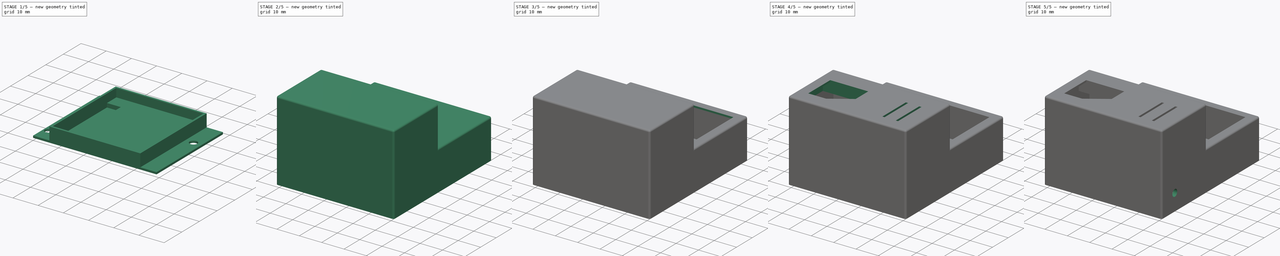
[diagram: build sequence overview — one tinted view per stage of 5, left to right]
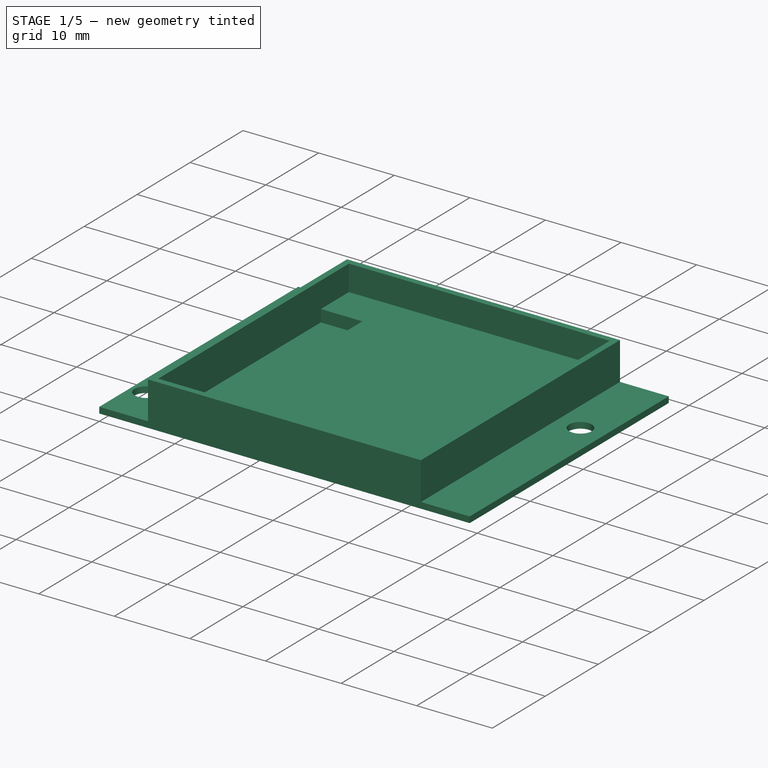
[diagram: stage 1 of 5 — iso view after this stage's code; geometry added in this stage tinted green]
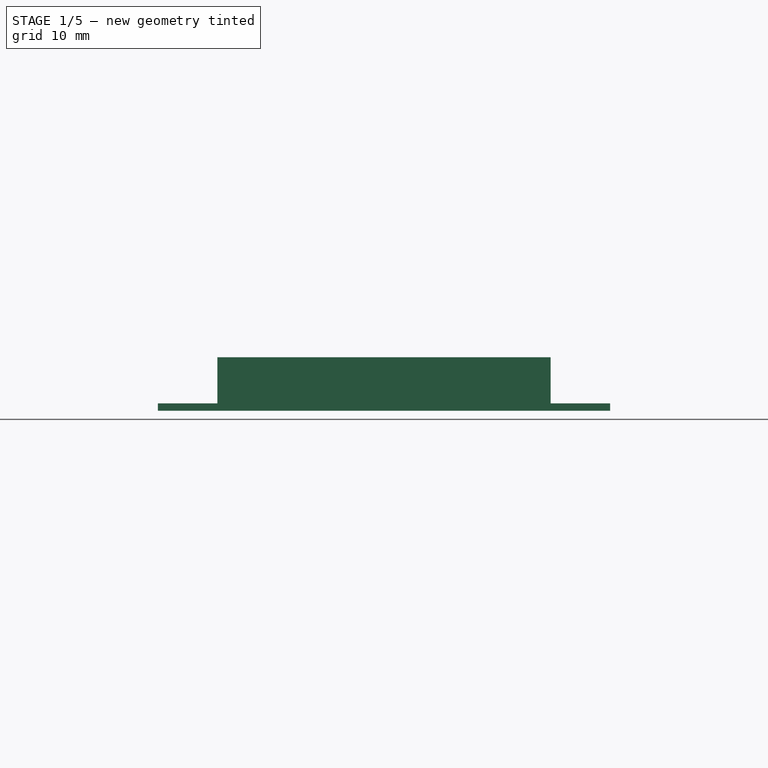
[diagram: stage 1 of 5 — front view after this stage's code; geometry added in this stage tinted green]
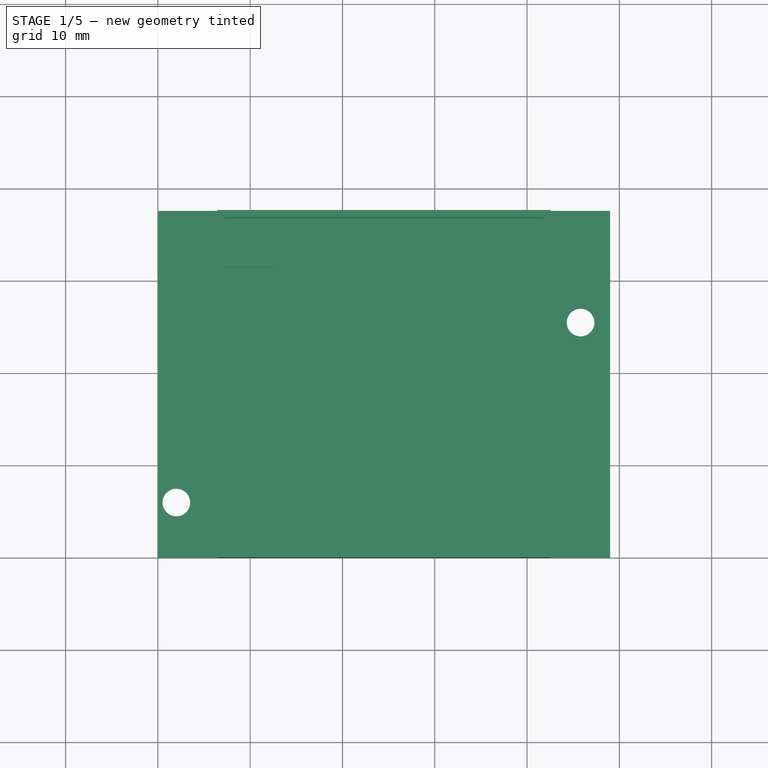
[diagram: stage 1 of 5 — top view after this stage's code; geometry added in this stage tinted green]
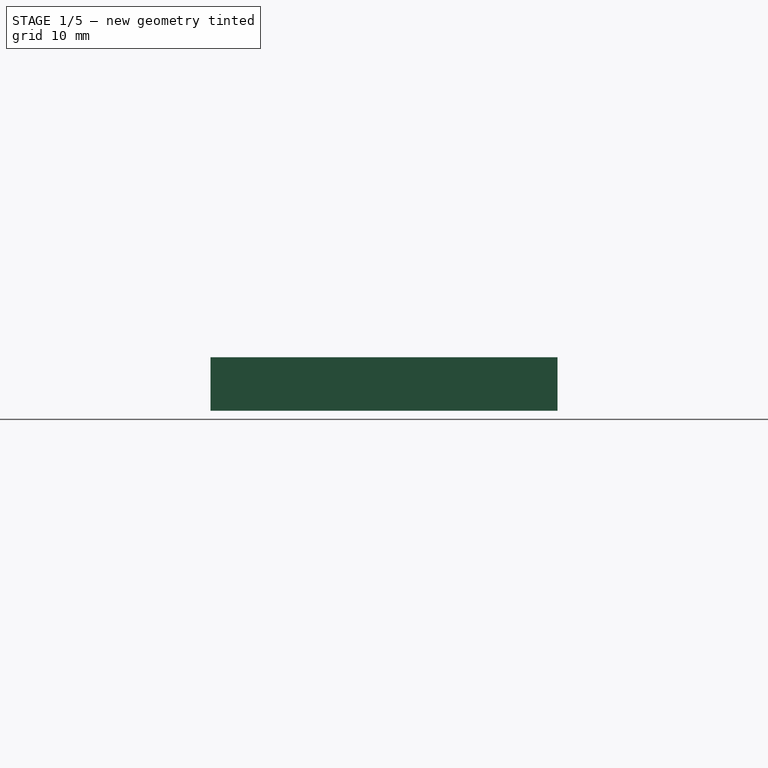
[diagram: stage 1 of 5 — right view after this stage's code; geometry added in this stage tinted green]
FCSTD DOCUMENT  (FreeCAD 0.19R24276 (Git))
Label: espair_case
License: All rights reserved
LicenseURL: http://en.wikipedia.org/wiki/All_rights_reserved
objects: Sketcher::SketchObject×24, PartDesign::Pocket×15, PartDesign::Pad×9, PartDesign::Fillet×3, PartDesign::Body×2, PartDesign::Thickness×1, PartDesign::LinearPattern×1
note: 83 computed .brp shape members not serialized (recipe doc carries the construction recipe); baked Part::Feature solids carry a one-line shape summary decoded from their .brp

FEATURE [PartDesign::Body] Body
  Group = -> [Sketch,Pad,Sketch001,Pocket,Thickness,Sketch002,Pocket001,Sketch003,Pocket002,Sketch004,Pocket003,Sketch005,Pocket004,Sketch006,Pad001,Sketch007,Pocket005,Sketch008,Pocket006,Sketch010,Pocket007,LinearPattern,Fillet,Sketch011,Pad002,Sketch012,Pad003,Sketch013,Pad004,Sketch014,Pad005,Sketch016,Pad006,Sketch015,Pocket008,Fillet001]
  Origin = -> Origin
  Tip = -> Fillet001
FEATURE [Sketcher::SketchObject] Sketch017
  FullyConstrained = true
  MapMode = 5
  Support = -> [XY_Plane001]
  sketch-geometry (4):
    g0: LineSegment StartX=0 StartY=0 StartZ=0 EndX=49 EndY=0 EndZ=0
    g1: LineSegment StartX=49 StartY=0 StartZ=0 EndX=49 EndY=37.6 EndZ=0
    g2: LineSegment StartX=49 StartY=37.6 StartZ=0 EndX=0 EndY=37.6 EndZ=0
    g3: LineSegment StartX=0 StartY=37.6 StartZ=0 EndX=0 EndY=0 EndZ=0
  constraints (11):
    c: Coincident(g0,g1)
    c: Coincident(g1,g2)
    c: Coincident(g2,g3)
    c: Coincident(g3,g0)
    c: Horizontal(g0)
    c: Horizontal(g2)
    c: Vertical(g1)
    c: Vertical(g3)
    c: Coincident(g0,g-1)
    c: DistanceX(g0,g0) = 49
    c: DistanceY(g1,g1) = 37.6
FEATURE [PartDesign::Pad] Pad007
  Direction = (1,1,1)
  Length = 0.8
  Length2 = 100
  Profile = -> Sketch017
  Type = 0
FEATURE [Sketcher::SketchObject] Sketch018
  FullyConstrained = true
  MapMode = 5
  Placement = pos=(0,0,0.8) rot=(0,0,1;0rad)
  Support = -> [Pad007]
  sketch-geometry (1):
    g0: Circle CenterX=2 CenterY=6 CenterZ=0 NormalX=0 NormalY=0 NormalZ=1 AngleXU=0 Radius=1.5
  constraints (3):
    c: DistanceX(g-1,g0) = 2
    c: Radius(g0) = 1.5
    c: DistanceY(g-1,g0) = 6
FEATURE [PartDesign::Pocket] Pocket009
  BaseFeature = -> Pad007
  Length = 5
  Length2 = 100
  Profile = -> Sketch018
  Type = 2
FEATURE [Sketcher::SketchObject] Sketch020
  ExternalGeometry = -> [Pocket009]
  FullyConstrained = true
  MapMode = 5
  Placement = pos=(0,0,0.8) rot=(0,0,1;0rad)
  Support = -> [Pocket009]
  sketch-geometry (1):
    g0: Circle CenterX=45.8 CenterY=25.5 CenterZ=0 NormalX=0 NormalY=0 NormalZ=1 AngleXU=0 Radius=1.5
  constraints (3):
    c: Radius(g0) = 1.5
    c: Distance(g0,g-3) = 3.2
    c: DistanceY(g-4,g0) = 19.5
FEATURE [PartDesign::Pocket] Pocket010
  BaseFeature = -> Pocket009
  Length = 5
  Length2 = 100
  Profile = -> Sketch020
  Type = 2
FEATURE [Sketcher::SketchObject] Sketch021
  ExternalGeometry = -> [Pocket010]
  FullyConstrained = true
  MapMode = 5
  Placement = pos=(0,0,0.8) rot=(0,0,1;0rad)
  Support = -> [Pocket010]
  sketch-geometry (6):
    g0: LineSegment StartX=6.45 StartY=37.6 StartZ=0 EndX=42.55 EndY=37.6 EndZ=0
    g1: LineSegment StartX=42.55 StartY=37.6 StartZ=0 EndX=42.55 EndY=0 EndZ=0
    g2: LineSegment StartX=42.55 StartY=0 StartZ=0 EndX=6.45 EndY=0 EndZ=0
    g3: LineSegment StartX=6.45 StartY=0 StartZ=0 EndX=6.45 EndY=37.6 EndZ=0
    g4: LineSegment StartX=42.55 StartY=37.6 StartZ=0 EndX=49 EndY=37.6 EndZ=0
    g5: LineSegment StartX=6.45 StartY=37.6 StartZ=0 EndX=0 EndY=37.6 EndZ=0
  constraints (16):
    c: Coincident(g0,g1)
    c: Coincident(g1,g2)
    c: Coincident(g2,g3)
    c: Coincident(g3,g0)
    c: Horizontal(g0)
    c: Horizontal(g2)
    c: Vertical(g1)
    c: Vertical(g3)
    c: PointOnObject(g0,g-3)
    c: PointOnObject(g1,g-1)
    c: DistanceX(g2,g2) = 36.1
    c: Coincident(g4,g0)
    c: Coincident(g4,g-3)
    c: Coincident(g5,g0)
    c: Coincident(g5,g-3)
    c: Equal(g5,g4)
FEATURE [PartDesign::Pad] Pad008
  BaseFeature = -> Pocket010
  Direction = (1,1,1)
  Length = 5
  Length2 = 100
  Profile = -> Sketch021
  Type = 0
FEATURE [Sketcher::SketchObject] Sketch022
  ExternalGeometry = -> [Pad008]
  FullyConstrained = true
  MapMode = 5
  Placement = pos=(0,0,5.8) rot=(0,0,1;0rad)
  Support = -> [Pad008]
  sketch-geometry (4):
    g0: LineSegment StartX=7.25 StartY=36.8 StartZ=0 EndX=41.75 EndY=36.8 EndZ=0
    g1: LineSegment StartX=41.75 StartY=36.8 StartZ=0 EndX=41.75 EndY=0.8 EndZ=0
    g2: LineSegment StartX=41.75 StartY=0.8 StartZ=0 EndX=7.25 EndY=0.8 EndZ=0
    g3: LineSegment StartX=7.25 StartY=0.8 StartZ=0 EndX=7.25 EndY=36.8 EndZ=0
  constraints (12):
    c: Coincident(g0,g1)
    c: Coincident(g1,g2)
    c: Coincident(g2,g3)
    c: Coincident(g3,g0)
    c: Horizontal(g0)
    c: Horizontal(g2)
    c: Vertical(g1)
    c: Vertical(g3)
    c: Distance(g0,g-3) = 0.8
    c: Distance(g0,g-4) = 0.8
    c: DistanceY(g-1,g1) = 0.8
    c: Distance(g-3,g3) = 0.8
FEATURE [PartDesign::Pocket] Pocket011
  BaseFeature = -> Pad008
  Length = 3.4
  Length2 = 100
  Profile = -> Sketch022
  Type = 0
FEATURE [Sketcher::SketchObject] Sketch023
  ExternalGeometry = -> [Pocket011]
  FullyConstrained = true
  MapMode = 5
  Placement = pos=(0,0,2.4) rot=(0,0,1;0rad)
  Support = -> [Pocket011]
  sketch-geometry (4):
    g0: LineSegment StartX=7.25 StartY=31.5 StartZ=0 EndX=12.75 EndY=31.5 EndZ=0
    g1: LineSegment StartX=12.75 StartY=31.5 StartZ=0 EndX=12.75 EndY=6.1 EndZ=0
    g2: LineSegment StartX=12.75 StartY=6.1 StartZ=0 EndX=7.25 EndY=6.1 EndZ=0
    g3: LineSegment StartX=7.25 StartY=6.1 StartZ=0 EndX=7.25 EndY=31.5 EndZ=0
  constraints (12):
    c: Coincident(g0,g1)
    c: Coincident(g1,g2)
    c: Coincident(g2,g3)
    c: Coincident(g3,g0)
    c: Horizontal(g0)
    c: Horizontal(g2)
    c: Vertical(g1)
    c: Vertical(g3)
    c: DistanceX(g2,g2) = 5.5
    c: PointOnObject(g0,g-3)
    c: Distance(g-3,g0) = 5.3
    c: Distance(g-3,g2) = 5.3
FEATURE [PartDesign::Pocket] Pocket012
  BaseFeature = -> Pocket011
  Length = 1.6
  Length2 = 100
  Profile = -> Sketch023
  Type = 0
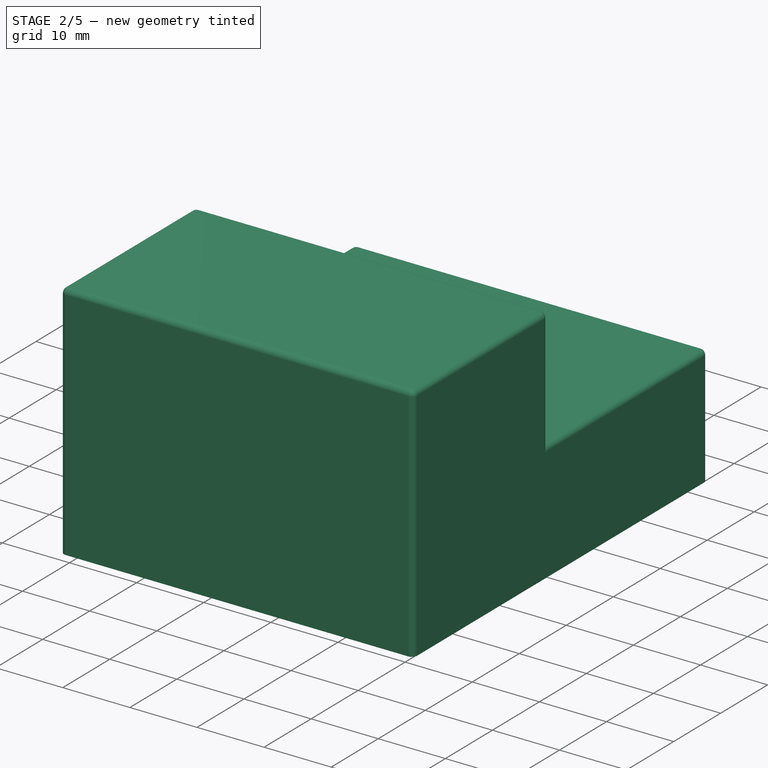
[diagram: stage 2 of 5 — iso view after this stage's code; geometry added in this stage tinted green]
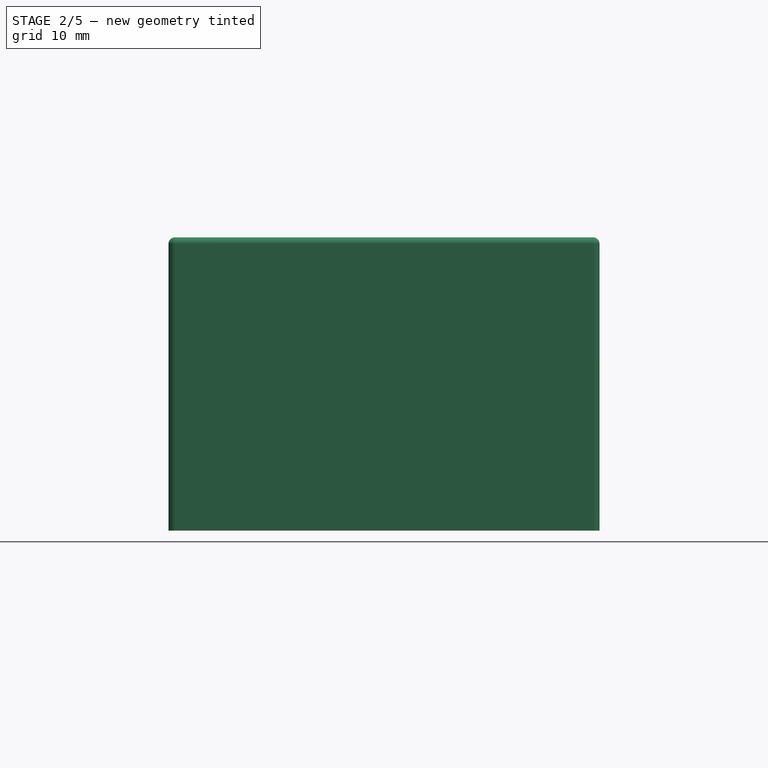
[diagram: stage 2 of 5 — front view after this stage's code; geometry added in this stage tinted green]
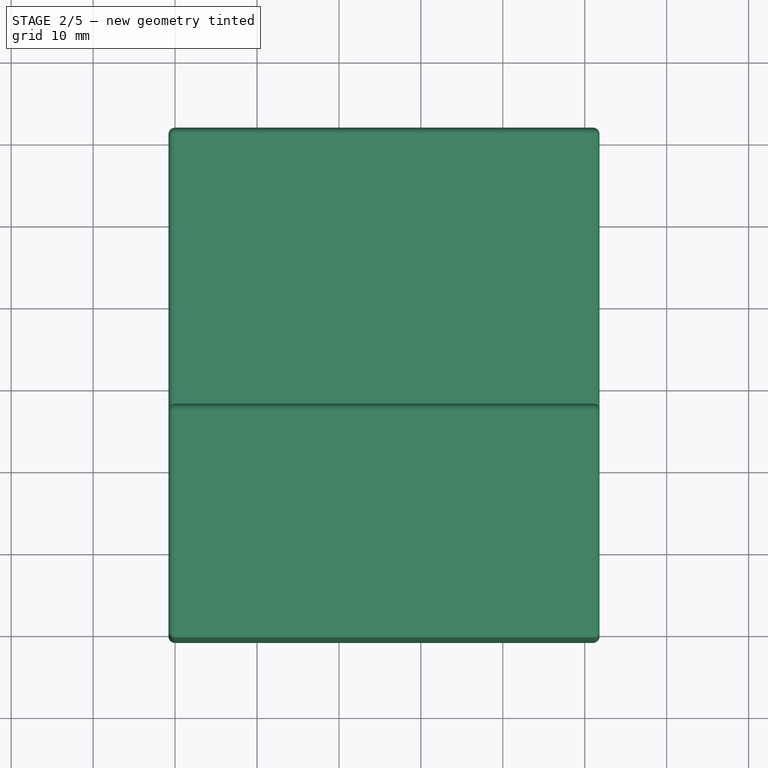
[diagram: stage 2 of 5 — top view after this stage's code; geometry added in this stage tinted green]
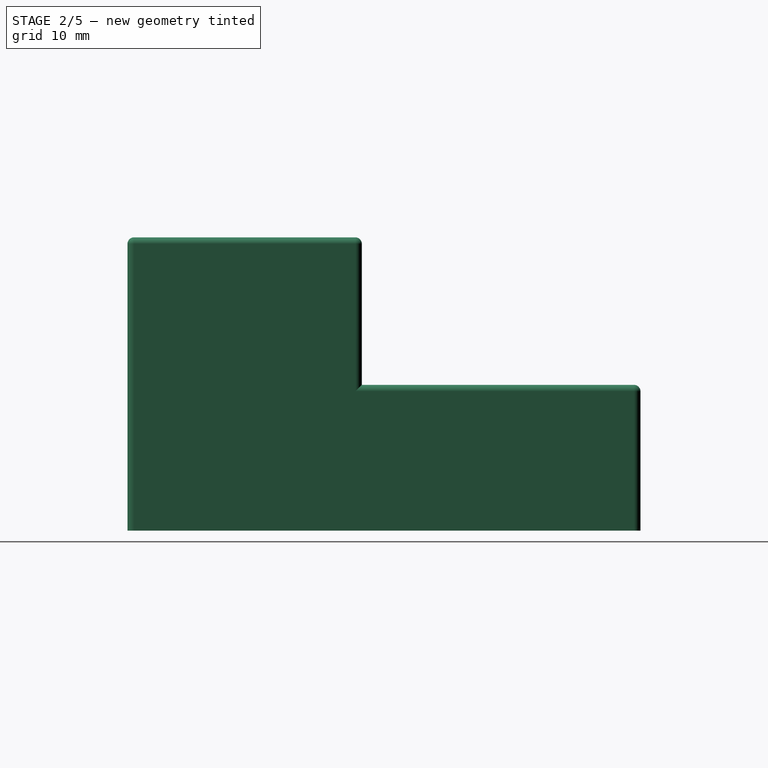
[diagram: stage 2 of 5 — right view after this stage's code; geometry added in this stage tinted green]
FEATURE [Sketcher::SketchObject] Sketch
  FullyConstrained = true
  MapMode = 5
  Support = -> [XY_Plane]
  sketch-geometry (4):
    g0: LineSegment StartX=0 StartY=0 StartZ=0 EndX=51 EndY=0 EndZ=0
    g1: LineSegment StartX=51 StartY=0 StartZ=0 EndX=51 EndY=61 EndZ=0
    g2: LineSegment StartX=51 StartY=61 StartZ=0 EndX=0 EndY=61 EndZ=0
    g3: LineSegment StartX=0 StartY=61 StartZ=0 EndX=0 EndY=0 EndZ=0
  constraints (11):
    c: Coincident(g0,g1)
    c: Coincident(g1,g2)
    c: Coincident(g2,g3)
    c: Coincident(g3,g0)
    c: Horizontal(g0)
    c: Horizontal(g2)
    c: Vertical(g1)
    c: Vertical(g3)
    c: Coincident(g0,g-1)
    c: DistanceX(g2,g2) = 51
    c: DistanceY(g3,g3) = 61
FEATURE [PartDesign::Pad] Pad
  Direction = (1,1,1)
  Length = 35
  Length2 = 100
  Profile = -> Sketch
  Type = 0
FEATURE [Sketcher::SketchObject] Sketch001
  ExternalGeometry = -> [Pad]
  FullyConstrained = true
  MapMode = 5
  Placement = pos=(0,0,35) rot=(0,0,1;0rad)
  Support = -> [Pad]
  sketch-geometry (4):
    g0: LineSegment StartX=51 StartY=61 StartZ=0 EndX=0 EndY=61 EndZ=0
    g1: LineSegment StartX=0 StartY=61 StartZ=0 EndX=0 EndY=27 EndZ=0
    g2: LineSegment StartX=0 StartY=27 StartZ=0 EndX=51 EndY=27 EndZ=0
    g3: LineSegment StartX=51 StartY=27 StartZ=0 EndX=51 EndY=61 EndZ=0
  constraints (11):
    c: Coincident(g0,g1)
    c: Coincident(g1,g2)
    c: Coincident(g2,g3)
    c: Coincident(g3,g0)
    c: Horizontal(g0)
    c: Horizontal(g2)
    c: Vertical(g1)
    c: Vertical(g3)
    c: Coincident(g0,g-3)
    c: PointOnObject(g1,g-2)
    c: DistanceY(g1,g1) = 34
FEATURE [PartDesign::Pocket] Pocket
  BaseFeature = -> Pad
  Length = 18
  Length2 = 100
  Profile = -> Sketch001
  Type = 0
FEATURE [PartDesign::Thickness] Thickness
  Base = -> Pocket [Face4]
  BaseFeature = -> Pocket
  Intersection = false
  Join = 0
  Mode = 0
  SupportTransform = false
  Value = 0.8
FEATURE [Sketcher::SketchObject] Sketch024
  ExternalGeometry = -> [Pocket012]
  FullyConstrained = true
  MapMode = 5
  Placement = pos=(0,0,2.4) rot=(0,0,1;0rad)
  Support = -> [Pocket012]
  sketch-geometry (4):
    g0: LineSegment StartX=41.75 StartY=31.5 StartZ=0 EndX=36.25 EndY=31.5 EndZ=0
    g1: LineSegment StartX=36.25 StartY=31.5 StartZ=0 EndX=36.25 EndY=6.1 EndZ=0
    g2: LineSegment StartX=36.25 StartY=6.1 StartZ=0 EndX=41.75 EndY=6.1 EndZ=0
    g3: LineSegment StartX=41.75 StartY=6.1 StartZ=0 EndX=41.75 EndY=31.5 EndZ=0
  constraints (12):
    c: Coincident(g0,g1)
    c: Coincident(g1,g2)
    c: Coincident(g2,g3)
    c: Coincident(g3,g0)
    c: Horizontal(g0)
    c: Horizontal(g2)
    c: Vertical(g1)
    c: Vertical(g3)
    c: PointOnObject(g0,g-3)
    c: DistanceX(g0,g0) = 5.5
    c: Distance(g-3,g0) = 5.3
    c: Distance(g-3,g2) = 5.3
FEATURE [PartDesign::Pocket] Pocket013
  BaseFeature = -> Pocket012
  Length = 1.6
  Length2 = 100
  Profile = -> Sketch024
  Type = 0
FEATURE [Sketcher::SketchObject] Sketch025
  ExternalGeometry = -> [Pocket013]
  FullyConstrained = true
  MapMode = 5
  Placement = pos=(0,0,2.4) rot=(0,0,1;0rad)
  Support = -> [Pocket013]
  sketch-geometry (3):
    g0: LineSegment StartX=7.25 StartY=36.8 StartZ=0 EndX=41.75 EndY=0.8 EndZ=0
    g1: LineSegment StartX=7.25 StartY=0.8 StartZ=0 EndX=41.75 EndY=36.8 EndZ=0
    g2: Circle CenterX=24.5 CenterY=18.8 CenterZ=0 NormalX=0 NormalY=0 NormalZ=1 AngleXU=0 Radius=5
  constraints (7):
    c: Coincident(g0,g-3)
    c: Coincident(g0,g-4)
    c: Coincident(g1,g-3)
    c: Coincident(g1,g-4)
    c: PointOnObject(g2,g1)
    c: PointOnObject(g2,g0)
    c: Radius(g2) = 5
FEATURE [PartDesign::Pocket] Pocket014
  BaseFeature = -> Pocket013
  Length = 5
  Length2 = 100
  Profile = -> Sketch025
  Type = 2
FEATURE [PartDesign::Fillet] Fillet002
  Base = -> Pocket014 [Edge15]
  BaseFeature = -> Pocket014
  Radius = 1
  SupportTransform = false
FEATURE [PartDesign::Body] Body001  label="ESP"
  Group = -> [Sketch017,Pad007,Sketch018,Pocket009,Sketch020,Pocket010,Sketch021,Pad008,Sketch022,Pocket011,Sketch023,Pocket012,Sketch024,Pocket013,Sketch025,Pocket014,Fillet002]
  Origin = -> Origin001
  Placement = pos=(1,56,15) rot=(1,0,0;3.14159rad)
  Tip = -> Fillet002
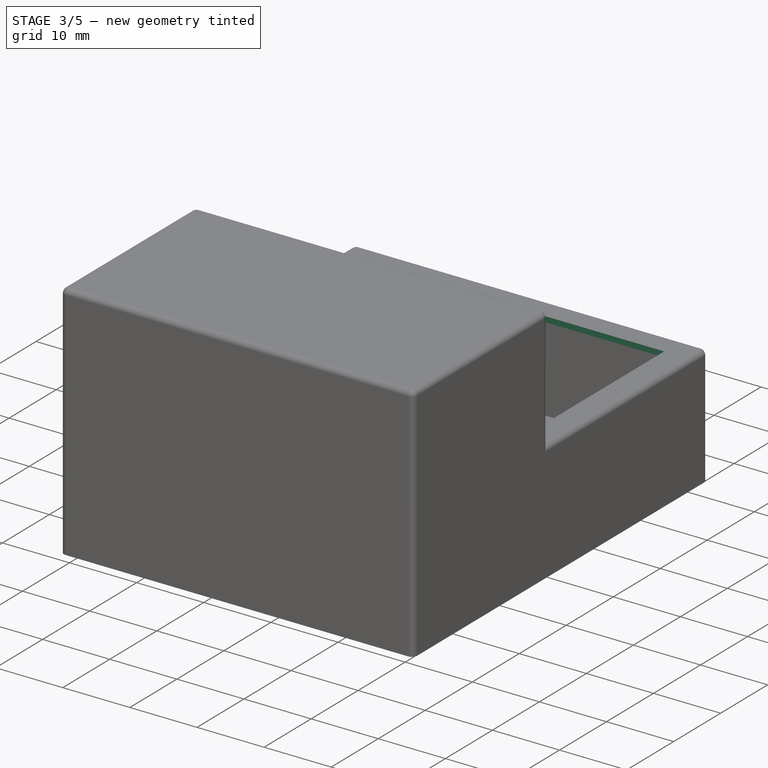
[diagram: stage 3 of 5 — iso view after this stage's code; geometry added in this stage tinted green]
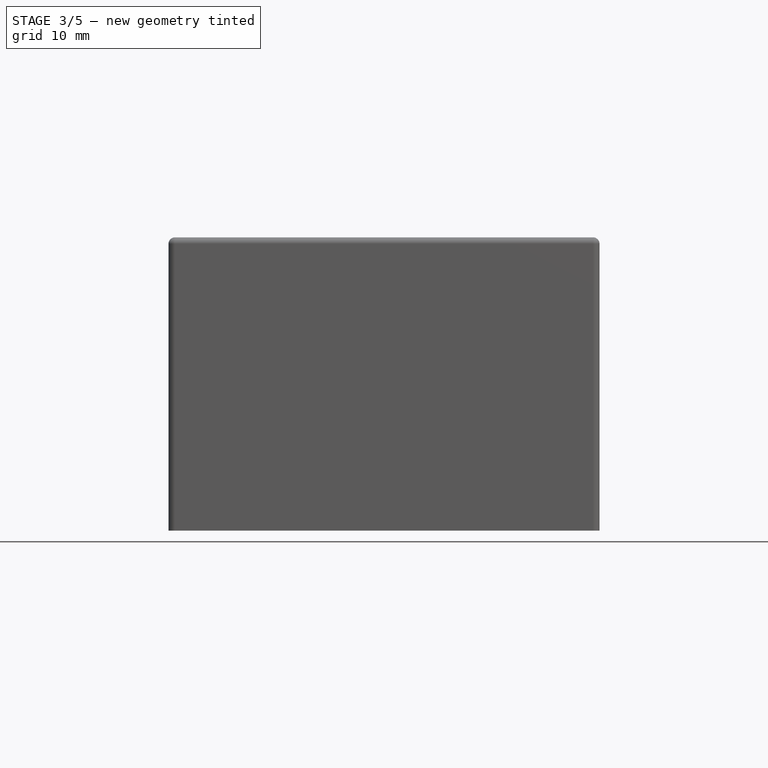
[diagram: stage 3 of 5 — front view after this stage's code; geometry added in this stage tinted green]
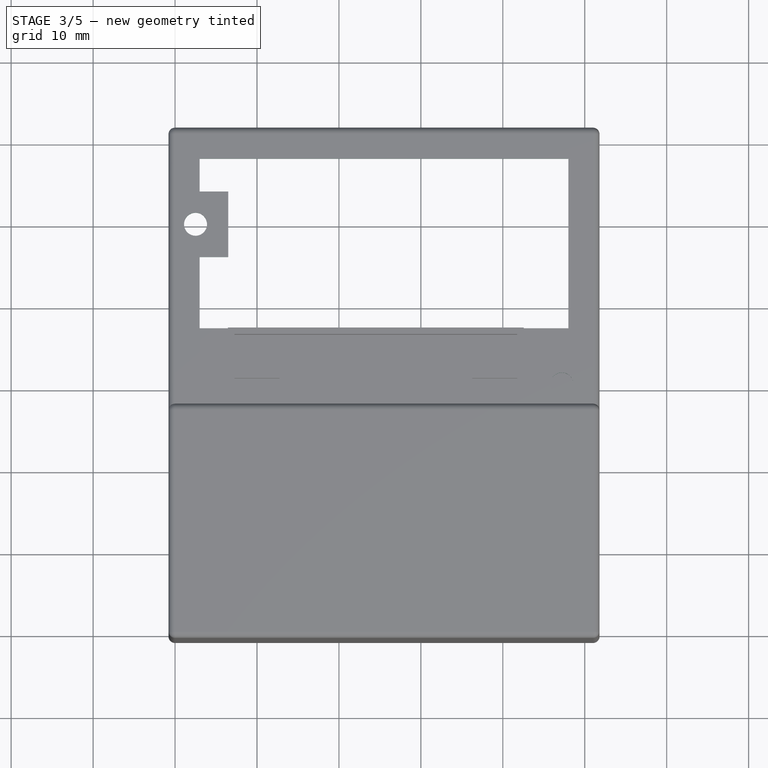
[diagram: stage 3 of 5 — top view after this stage's code; geometry added in this stage tinted green]
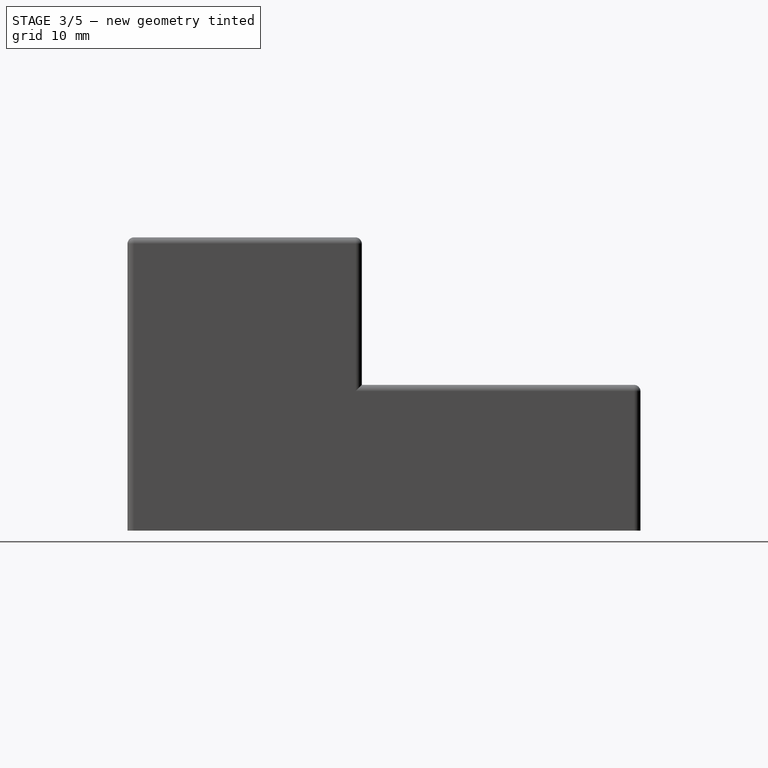
[diagram: stage 3 of 5 — right view after this stage's code; geometry added in this stage tinted green]
FEATURE [Sketcher::SketchObject] Sketch002
  ExternalGeometry = -> [Thickness]
  FullyConstrained = true
  MapMode = 5
  Placement = pos=(0,27.8,0) rot=(0,0.707107,0.707107;3.14159rad)
  Support = -> [Thickness]
  sketch-geometry (4):
    g0: LineSegment StartX=-42 StartY=35 StartZ=0 EndX=-29 EndY=35 EndZ=0
    g1: LineSegment StartX=-29 StartY=35 StartZ=0 EndX=-29 EndY=31 EndZ=0
    g2: LineSegment StartX=-29 StartY=31 StartZ=0 EndX=-42 EndY=31 EndZ=0
    g3: LineSegment StartX=-42 StartY=31 StartZ=0 EndX=-42 EndY=35 EndZ=0
  constraints (12):
    c: Coincident(g0,g1)
    c: Coincident(g1,g2)
    c: Coincident(g2,g3)
    c: Coincident(g3,g0)
    c: Horizontal(g0)
    c: Horizontal(g2)
    c: Vertical(g1)
    c: Vertical(g3)
    c: DistanceX(g2,g2) = 13
    c: DistanceY(g1,g1) = 4
    c: PointOnObject(g0,g-3)
    c: DistanceX(g-3,g0) = 9
FEATURE [PartDesign::Pocket] Pocket001
  BaseFeature = -> Thickness
  Length = 0.8
  Length2 = 100
  Profile = -> Sketch002
  Type = 0
FEATURE [Sketcher::SketchObject] Sketch003
  ExternalGeometry = -> [Pocket001]
  FullyConstrained = true
  MapMode = 5
  Placement = pos=(0,0,17.8) rot=(0,0,1;0rad)
  Support = -> [Pocket001]
  sketch-geometry (1):
    g0: Circle CenterX=2.5 CenterY=50 CenterZ=0 NormalX=0 NormalY=0 NormalZ=1 AngleXU=0 Radius=1.4
  constraints (3):
    c: DistanceX(g-1,g0) = 2.5
    c: Radius(g0) = 1.4
    c: Distance(g0,g-3) = 11
FEATURE [PartDesign::Pocket] Pocket002
  BaseFeature = -> Pocket001
  Length = 5
  Length2 = 100
  Profile = -> Sketch003
  Type = 2
FEATURE [Sketcher::SketchObject] Sketch004
  ExternalGeometry = -> [Pocket002]
  FullyConstrained = true
  MapMode = 5
  Placement = pos=(0,0,17.8) rot=(0,0,1;0rad)
  Support = -> [Pocket002]
  sketch-geometry (1):
    g0: Circle CenterX=47.2 CenterY=30.5 CenterZ=0 NormalX=0 NormalY=0 NormalZ=1 AngleXU=0 Radius=1.4
  constraints (3):
    c: Radius(g0) = 1.4
    c: Distance(g0,g-3) = 3.8
    c: Distance(g0,g-4) = 30.5
FEATURE [PartDesign::Pocket] Pocket003
  BaseFeature = -> Pocket002
  Length = 5
  Length2 = 100
  Profile = -> Sketch004
  Type = 2
FEATURE [Sketcher::SketchObject] Sketch005
  ExternalGeometry = -> [Pocket003]
  FullyConstrained = true
  MapMode = 5
  Placement = pos=(0,0,17.8) rot=(0,0,1;0rad)
  Support = -> [Pocket003]
  sketch-geometry (10):
    g0: LineSegment StartX=3 StartY=46 StartZ=0 EndX=3 EndY=30.8 EndZ=0
    g1: LineSegment StartX=3 StartY=30.8 StartZ=0 EndX=43.2 EndY=30.8 EndZ=0
    g2: LineSegment StartX=43.2 StartY=30.8 StartZ=0 EndX=43.2 EndY=34.5 EndZ=0
    g3: LineSegment StartX=43.2 StartY=34.5 StartZ=0 EndX=48 EndY=34.5 EndZ=0
    g4: LineSegment StartX=48 StartY=34.5 StartZ=0 EndX=48 EndY=58 EndZ=0
    g5: LineSegment StartX=48 StartY=58 StartZ=0 EndX=3 EndY=58 EndZ=0
    g6: LineSegment StartX=3 StartY=58 StartZ=0 EndX=3 EndY=54 EndZ=0
    g7: LineSegment StartX=3 StartY=54 StartZ=0 EndX=6.5 EndY=54 EndZ=0
    g8: LineSegment StartX=6.5 StartY=54 StartZ=0 EndX=6.5 EndY=46 EndZ=0
    g9: LineSegment StartX=6.5 StartY=46 StartZ=0 EndX=3 EndY=46 EndZ=0
  constraints (30):
    c: Vertical(g0)
    c: Coincident(g1,g0)
    c: Horizontal(g1)
    c: Coincident(g2,g1)
    c: Vertical(g2)
    c: Coincident(g3,g2)
    c: Horizontal(g3)
    c: Coincident(g4,g3)
    c: Vertical(g4)
    c: Coincident(g5,g4)
    c: Horizontal(g5)
    c: Coincident(g6,g5)
    c: Vertical(g6)
    c: Coincident(g7,g6)
    c: Horizontal(g7)
    c: Coincident(g8,g7)
    c: Vertical(g8)
    c: Coincident(g9,g8)
    c: Coincident(g9,g0)
    c: Horizontal(g9)
    c: Distance(g5,g-3) = 3
    c: Distance(g4,g-4) = 3
    c: DistanceX(g-2,g5) = 3
    c: DistanceX(g-2,g0) = 3
    c: Distance(g0,g-5) = 3
    c: Distance(g-6,g9) = 4
    c: Distance(g-6,g7) = 4
    c: Distance(g-6,g8) = 4
    c: Distance(g-7,g3) = 4
    c: Distance(g-7,g2) = 4
FEATURE [PartDesign::Pocket] Pocket004
  BaseFeature = -> Pocket003
  Length = 5
  Length2 = 100
  Profile = -> Sketch005
  Type = 2
FEATURE [Sketcher::SketchObject] Sketch006
  FullyConstrained = true
  MapMode = 5
  Placement = pos=(0,0,35) rot=(1,0,0;3.14159rad)
  Support = -> [Pocket004]
  sketch-geometry (4):
    g0: LineSegment StartX=0 StartY=0 StartZ=0 EndX=34 EndY=0 EndZ=0
    g1: LineSegment StartX=34 StartY=0 StartZ=0 EndX=34 EndY=-21 EndZ=0
    g2: LineSegment StartX=34 StartY=-21 StartZ=0 EndX=0 EndY=-21 EndZ=0
    g3: LineSegment StartX=0 StartY=-21 StartZ=0 EndX=0 EndY=0 EndZ=0
  constraints (11):
    c: Coincident(g0,g1)
    c: Coincident(g1,g2)
    c: Coincident(g2,g3)
    c: Coincident(g3,g0)
    c: Horizontal(g0)
    c: Horizontal(g2)
    c: Vertical(g1)
    c: Vertical(g3)
    c: Coincident(g0,g-1)
    c: DistanceX(g2,g2) = 34
    c: DistanceY(g1,g1) = 21
FEATURE [PartDesign::Pad] Pad001
  BaseFeature = -> Pocket004
  Direction = (1,1,1)
  Length = 5
  Length2 = 100
  Profile = -> Sketch006
  Type = 0
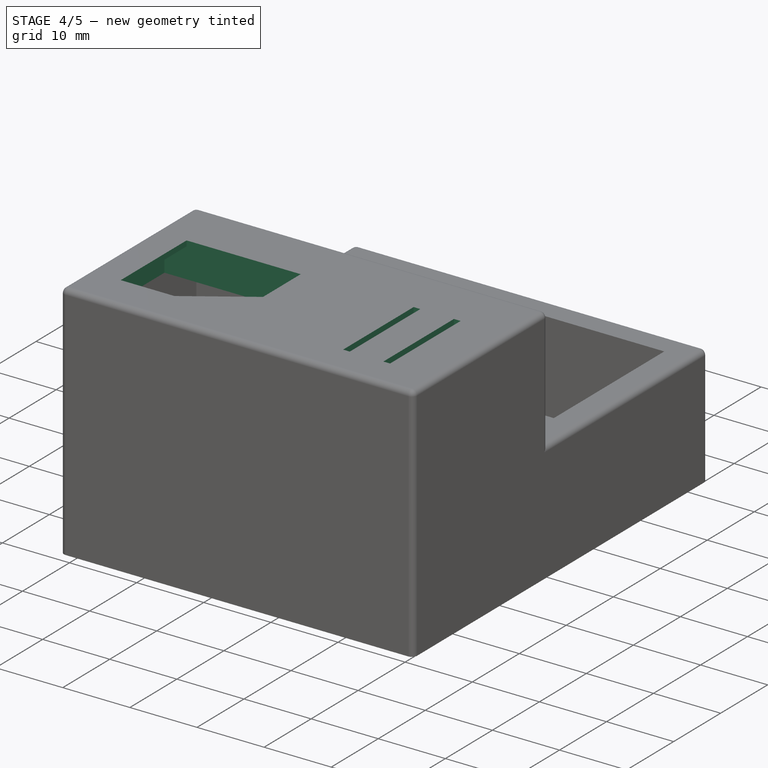
[diagram: stage 4 of 5 — iso view after this stage's code; geometry added in this stage tinted green]
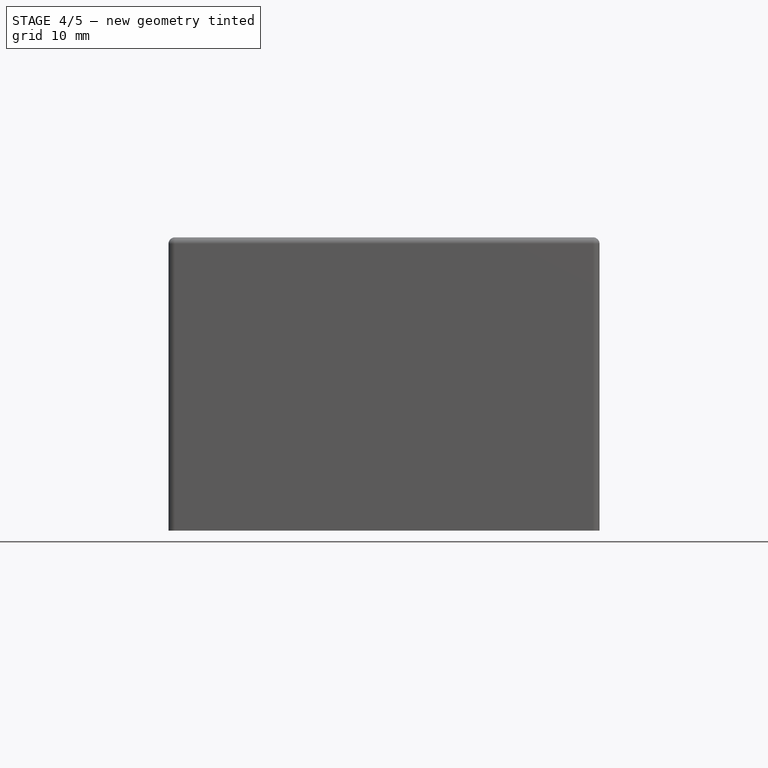
[diagram: stage 4 of 5 — front view after this stage's code; geometry added in this stage tinted green]
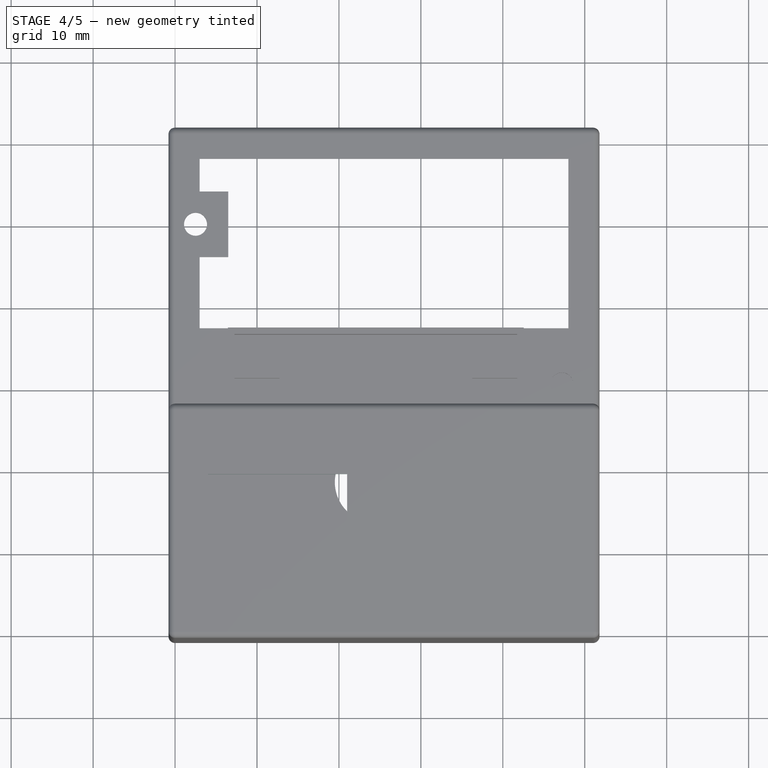
[diagram: stage 4 of 5 — top view after this stage's code; geometry added in this stage tinted green]
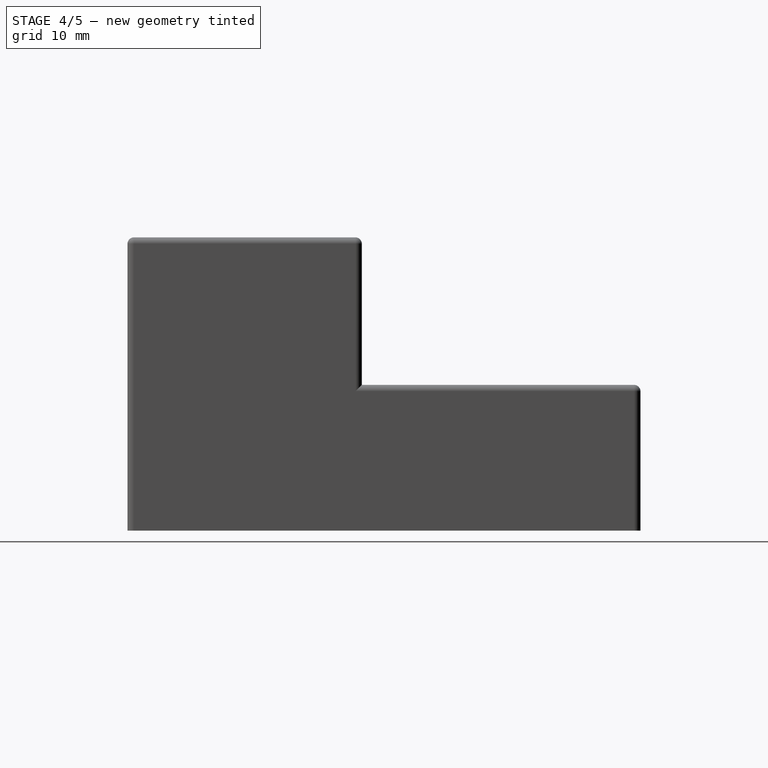
[diagram: stage 4 of 5 — right view after this stage's code; geometry added in this stage tinted green]
FEATURE [Sketcher::SketchObject] Sketch007
  ExternalGeometry = -> [Pad001]
  FullyConstrained = true
  MapMode = 5
  Placement = pos=(0,0,30) rot=(1,0,0;3.14159rad)
  Support = -> [Pad001]
  sketch-geometry (4):
    g0: LineSegment StartX=0 StartY=0 StartZ=0 EndX=33.2 EndY=0 EndZ=0
    g1: LineSegment StartX=33.2 StartY=0 StartZ=0 EndX=33.2 EndY=-20.2 EndZ=0
    g2: LineSegment StartX=33.2 StartY=-20.2 StartZ=0 EndX=0 EndY=-20.2 EndZ=0
    g3: LineSegment StartX=0 StartY=-20.2 StartZ=0 EndX=0 EndY=0 EndZ=0
  constraints (11):
    c: Coincident(g0,g1)
    c: Coincident(g1,g2)
    c: Coincident(g2,g3)
    c: Coincident(g3,g0)
    c: Horizontal(g0)
    c: Horizontal(g2)
    c: Vertical(g1)
    c: Vertical(g3)
    c: Coincident(g0,g-1)
    c: Distance(g-3,g2) = 0.8
    c: Distance(g-3,g1) = 0.8
FEATURE [PartDesign::Pocket] Pocket005
  BaseFeature = -> Pad001
  Length = 5
  Length2 = 100
  Profile = -> Sketch007
  Type = 0
FEATURE [Sketcher::SketchObject] Sketch008
  ExternalGeometry = -> [Pocket005]
  FullyConstrained = true
  MapMode = 5
  Placement = pos=(0,0,35) rot=(1,0,0;3.14159rad)
  Support = -> [Pocket005]
  sketch-geometry (5):
    g0: LineSegment StartX=4 StartY=-19.2 StartZ=0 EndX=21 EndY=-19.2 EndZ=0
    g1: LineSegment StartX=4 StartY=-19.2 StartZ=0 EndX=4 EndY=-5.2 EndZ=0
    g2: LineSegment StartX=4 StartY=-5.2 StartZ=0 EndX=12 EndY=-5.2 EndZ=0
    g3: LineSegment StartX=21 StartY=-19.2 StartZ=0 EndX=21 EndY=-11.2 EndZ=0
    g4: LineSegment StartX=12 StartY=-5.2 StartZ=0 EndX=21 EndY=-11.2 EndZ=0
  constraints (15):
    c: Horizontal(g0)
    c: Coincident(g1,g0)
    c: Vertical(g1)
    c: Coincident(g2,g1)
    c: Horizontal(g2)
    c: Coincident(g3,g0)
    c: Vertical(g3)
    c: Coincident(g4,g2)
    c: Coincident(g4,g3)
    c: DistanceX(g0,g0) = 17
    c: DistanceY(g1,g1) = 14
    c: DistanceX(g2,g2) = 8
    c: DistanceY(g3,g3) = 8
    c: Distance(g-3,g0) = 1
    c: Distance(g-3,g1) = 4
FEATURE [PartDesign::Pocket] Pocket006
  BaseFeature = -> Pocket005
  Length = 5
  Length2 = 100
  Profile = -> Sketch008
  Type = 2
FEATURE [Sketcher::SketchObject] Sketch010
  FullyConstrained = false
  MapMode = 5
  Placement = pos=(0,0,35) rot=(1,0,0;3.14159rad)
  Support = -> [Pocket006]
  sketch-geometry (4):
    g0: LineSegment StartX=37.7348 StartY=-4.33204 StartZ=0 EndX=38.7348 EndY=-4.33204 EndZ=0
    g1: LineSegment StartX=38.7348 StartY=-4.33204 StartZ=0 EndX=38.7348 EndY=-19.332 EndZ=0
    g2: LineSegment StartX=38.7348 StartY=-19.332 StartZ=0 EndX=37.7348 EndY=-19.332 EndZ=0
    g3: LineSegment StartX=37.7348 StartY=-19.332 StartZ=0 EndX=37.7348 EndY=-4.33204 EndZ=0
  constraints (10):
    c: Coincident(g0,g1)
    c: Coincident(g1,g2)
    c: Coincident(g2,g3)
    c: Coincident(g3,g0)
    c: Horizontal(g0)
    c: Horizontal(g2)
    c: Vertical(g1)
    c: Vertical(g3)
    c: DistanceX(g0,g0) = 1
    c: DistanceY(g3,g3) = 15
FEATURE [PartDesign::Pocket] Pocket007
  BaseFeature = -> Pocket006
  Length = 5
  Length2 = 100
  Profile = -> Sketch010
  Type = 2
FEATURE [PartDesign::LinearPattern] LinearPattern
  BaseFeature = -> Pocket007
  Direction = -> X_Axis
  Length = 6
  Occurrences = 2
  Originals = -> [Pocket007]
FEATURE [PartDesign::Fillet] Fillet
  Base = -> LinearPattern [Edge109,Edge37]
  BaseFeature = -> LinearPattern
  Radius = 1
  SupportTransform = false
FEATURE [Sketcher::SketchObject] Sketch011
  FullyConstrained = true
  MapMode = 5
  Placement = pos=(0,0,0) rot=(1,0,0;3.14159rad)
  Support = -> [Fillet]
  sketch-geometry (3):
    g0: LineSegment StartX=0 StartY=0 StartZ=0 EndX=4 EndY=0 EndZ=0
    g1: LineSegment StartX=0 StartY=0 StartZ=0 EndX=0 EndY=-4 EndZ=0
    g2: LineSegment StartX=0 StartY=-4 StartZ=0 EndX=4 EndY=0 EndZ=0
  constraints (8):
    c: Coincident(g0,g-1)
    c: PointOnObject(g0,g-1)
    c: PointOnObject(g1,g-2)
    c: Coincident(g2,g1)
    c: Coincident(g2,g0)
    c: Coincident(g0,g1)
    c: DistanceX(g0,g0) = 4
    c: DistanceY(g1,g1) = 4
FEATURE [PartDesign::Pad] Pad002
  BaseFeature = -> Fillet
  Direction = (1,1,1)
  Length = 1
  Length2 = 100
  Profile = -> Sketch011
  Reversed = true
  Type = 0
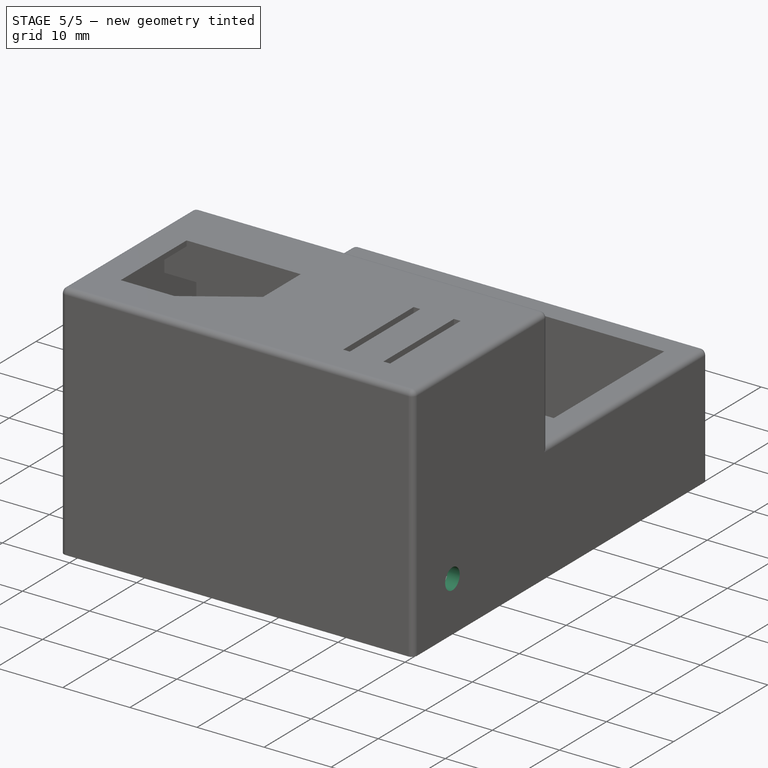
[diagram: stage 5 of 5 — iso view after this stage's code; geometry added in this stage tinted green]
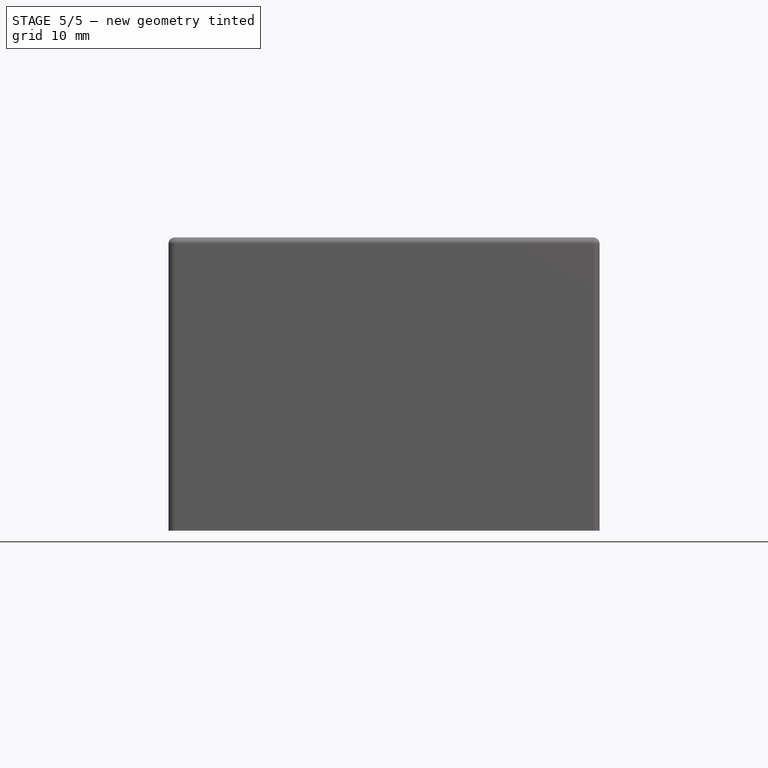
[diagram: stage 5 of 5 — front view after this stage's code; geometry added in this stage tinted green]
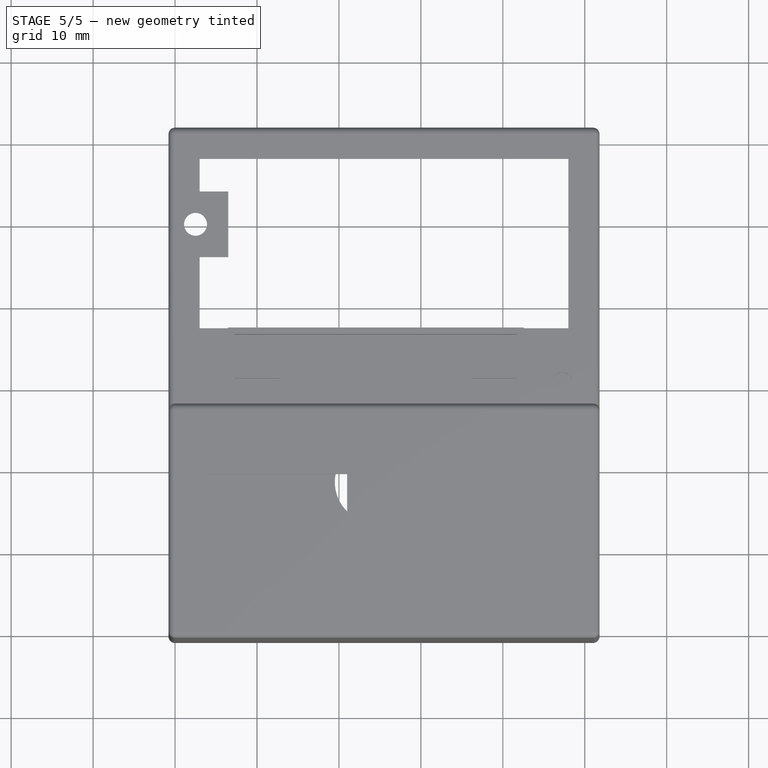
[diagram: stage 5 of 5 — top view after this stage's code; geometry added in this stage tinted green]
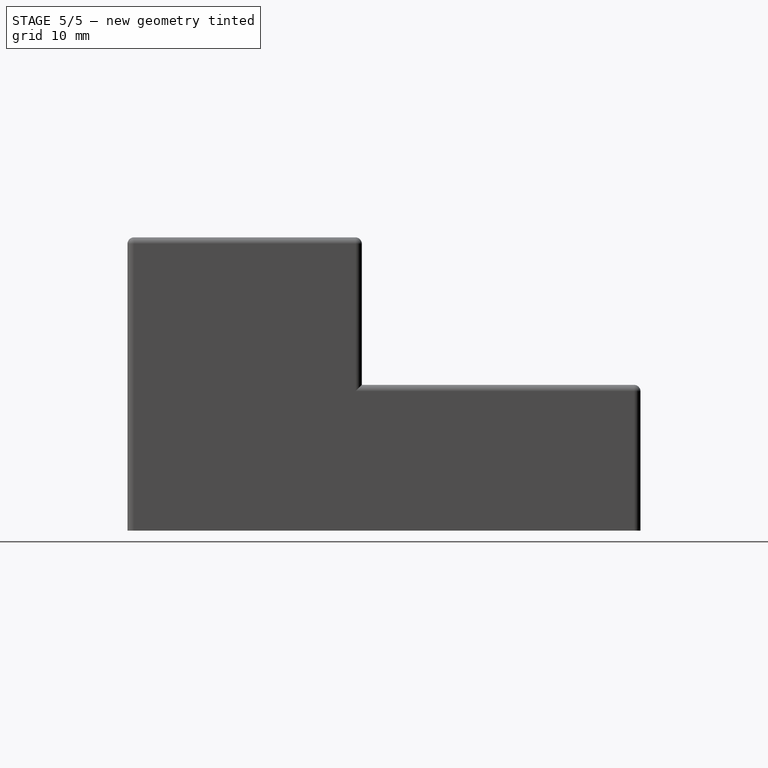
[diagram: stage 5 of 5 — right view after this stage's code; geometry added in this stage tinted green]
FEATURE [Sketcher::SketchObject] Sketch012
  ExternalGeometry = -> [Pad002]
  FullyConstrained = true
  MapMode = 5
  Placement = pos=(0,0,0) rot=(1,0,0;3.14159rad)
  Support = -> [Pad002]
  sketch-geometry (3):
    g0: LineSegment StartX=51 StartY=0 StartZ=0 EndX=47 EndY=-4e-16 EndZ=0
    g1: LineSegment StartX=51 StartY=0 StartZ=0 EndX=51 EndY=-4 EndZ=0
    g2: LineSegment StartX=51 StartY=-4 StartZ=0 EndX=47 EndY=-4e-16 EndZ=0
  constraints (8):
    c: Coincident(g0,g-3)
    c: PointOnObject(g0,g-1)
    c: Coincident(g1,g0)
    c: PointOnObject(g1,g-3)
    c: Coincident(g2,g1)
    c: Coincident(g2,g0)
    c: DistanceX(g0,g0) = 4
    c: DistanceY(g1,g1) = 4
FEATURE [PartDesign::Pad] Pad003
  BaseFeature = -> Pad002
  Direction = (1,1,1)
  Length = 1
  Length2 = 100
  Profile = -> Sketch012
  Reversed = true
  Type = 0
FEATURE [Sketcher::SketchObject] Sketch013
  ExternalGeometry = -> [Pad003]
  FullyConstrained = true
  MapMode = 5
  Placement = pos=(0,0,0) rot=(1,0,0;3.14159rad)
  Support = -> [Pad003]
  sketch-geometry (3):
    g0: LineSegment StartX=0 StartY=-61 StartZ=0 EndX=0 EndY=-57 EndZ=0
    g1: LineSegment StartX=0 StartY=-61 StartZ=0 EndX=4 EndY=-61 EndZ=0
    g2: LineSegment StartX=4 StartY=-61 StartZ=0 EndX=0 EndY=-57 EndZ=0
  constraints (8):
    c: Coincident(g0,g-3)
    c: PointOnObject(g0,g-2)
    c: Coincident(g1,g0)
    c: PointOnObject(g1,g-3)
    c: Coincident(g2,g1)
    c: Coincident(g2,g0)
    c: DistanceX(g1,g1) = 4
    c: DistanceY(g0,g0) = 4
FEATURE [PartDesign::Pad] Pad004
  BaseFeature = -> Pad003
  Direction = (1,1,1)
  Length = 1
  Length2 = 100
  Profile = -> Sketch013
  Reversed = true
  Type = 0
FEATURE [Sketcher::SketchObject] Sketch014
  ExternalGeometry = -> [Pad004]
  FullyConstrained = true
  MapMode = 5
  Placement = pos=(0,0,0) rot=(1,0,0;3.14159rad)
  Support = -> [Pad004]
  sketch-geometry (3):
    g0: LineSegment StartX=51 StartY=-61 StartZ=0 EndX=51 EndY=-57 EndZ=0
    g1: LineSegment StartX=51 StartY=-61 StartZ=0 EndX=47 EndY=-61 EndZ=0
    g2: LineSegment StartX=47 StartY=-61 StartZ=0 EndX=51 EndY=-57 EndZ=0
  constraints (8):
    c: Coincident(g0,g-4)
    c: PointOnObject(g0,g-3)
    c: Coincident(g1,g0)
    c: PointOnObject(g1,g-4)
    c: Coincident(g2,g1)
    c: Coincident(g2,g0)
    c: DistanceY(g0,g0) = 4
    c: DistanceX(g1,g1) = 4
FEATURE [PartDesign::Pad] Pad005
  BaseFeature = -> Pad004
  Direction = (1,1,1)
  Length = 1
  Length2 = 100
  Profile = -> Sketch014
  Reversed = true
  Type = 0
FEATURE [Sketcher::SketchObject] Sketch015
  FullyConstrained = true
  MapMode = 5
  Placement = pos=(51.8,0,0) rot=(0.57735,0.57735,0.57735;2.0944rad)
  Support = -> [Pad005]
  sketch-geometry (1):
    g0: Circle CenterX=7.5 CenterY=7.5 CenterZ=0 NormalX=0 NormalY=0 NormalZ=1 AngleXU=0 Radius=1.55
  constraints (3):
    c: Radius(g0) = 1.55
    c: DistanceX(g-1,g0) = 7.5
    c: DistanceY(g-1,g0) = 7.5
FEATURE [Sketcher::SketchObject] Sketch016
  FullyConstrained = true
  MapMode = 5
  Placement = pos=(51,0,0) rot=(0.57735,-0.57735,-0.57735;2.0944rad)
  Support = -> [Pad005]
  sketch-geometry (4):
    g0: LineSegment StartX=0 StartY=9.5 StartZ=0 EndX=-10 EndY=9.5 EndZ=0
    g1: LineSegment StartX=-10 StartY=9.5 StartZ=0 EndX=-10 EndY=5.5 EndZ=0
    g2: LineSegment StartX=-10 StartY=5.5 StartZ=0 EndX=0 EndY=5.5 EndZ=0
    g3: LineSegment StartX=0 StartY=5.5 StartZ=0 EndX=0 EndY=9.5 EndZ=0
  constraints (12):
    c: Coincident(g0,g1)
    c: Coincident(g1,g2)
    c: Coincident(g2,g3)
    c: Coincident(g3,g0)
    c: Horizontal(g0)
    c: Horizontal(g2)
    c: Vertical(g1)
    c: Vertical(g3)
    c: PointOnObject(g0,g-2)
    c: DistanceX(g2,g2) = 10
    c: DistanceY(g1,g1) = 4
    c: DistanceY(g-1,g1) = 5.5
FEATURE [PartDesign::Pad] Pad006
  BaseFeature = -> Pad005
  Direction = (1,1,1)
  Length = 1
  Length2 = 100
  Profile = -> Sketch016
  Type = 0
FEATURE [PartDesign::Pocket] Pocket008
  BaseFeature = -> Pad006
  Length = 5
  Length2 = 100
  Profile = -> Sketch015
  Type = 2
FEATURE [PartDesign::Fillet] Fillet001
  Base = -> Pocket008 [Edge133,Edge138]
  BaseFeature = -> Pocket008
  Radius = 1.5
  SupportTransform = false
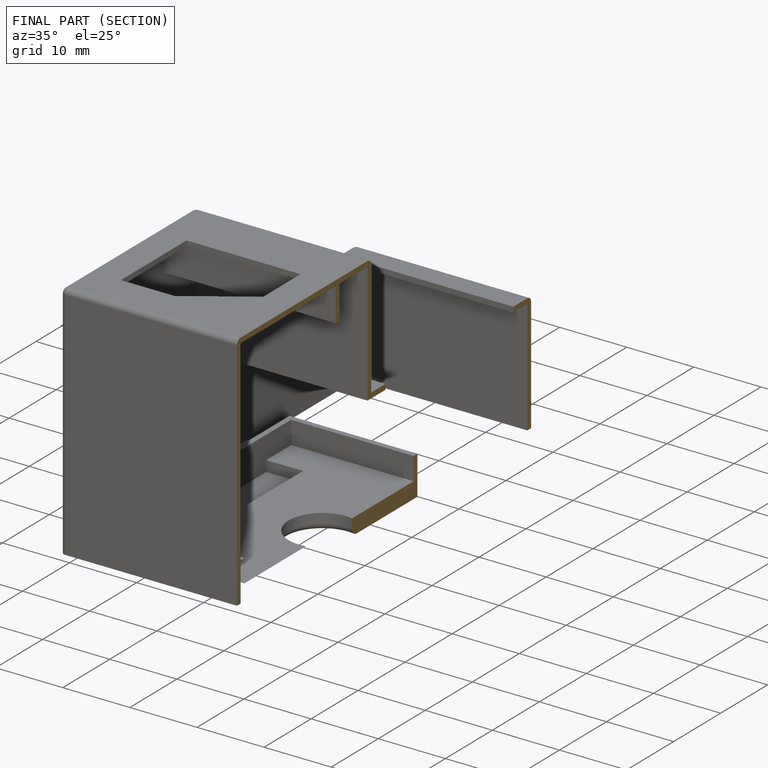
[diagram: finished part — half-section view (interior)]
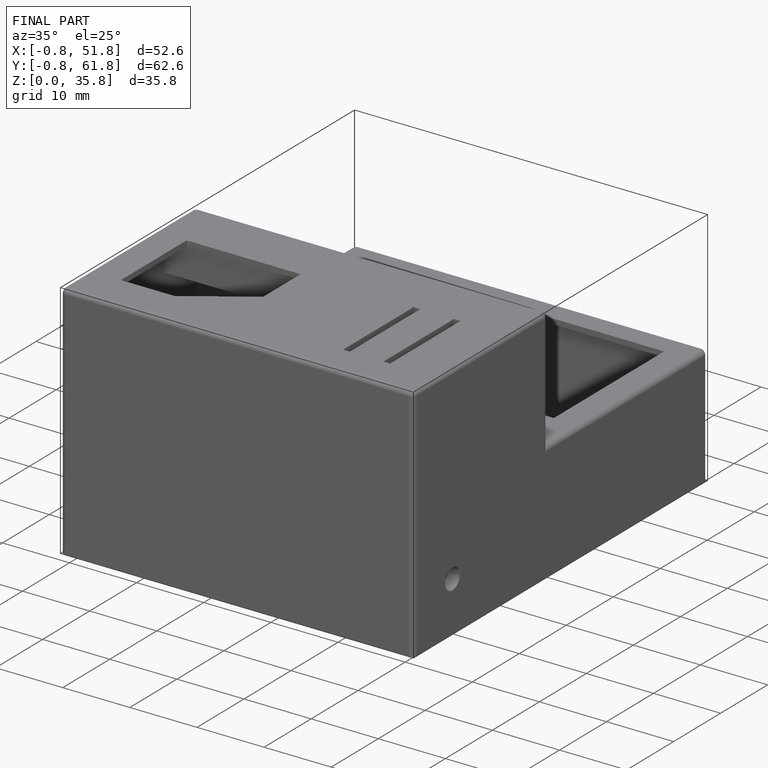
[diagram: finished part — iso view with bounding-box wireframe]
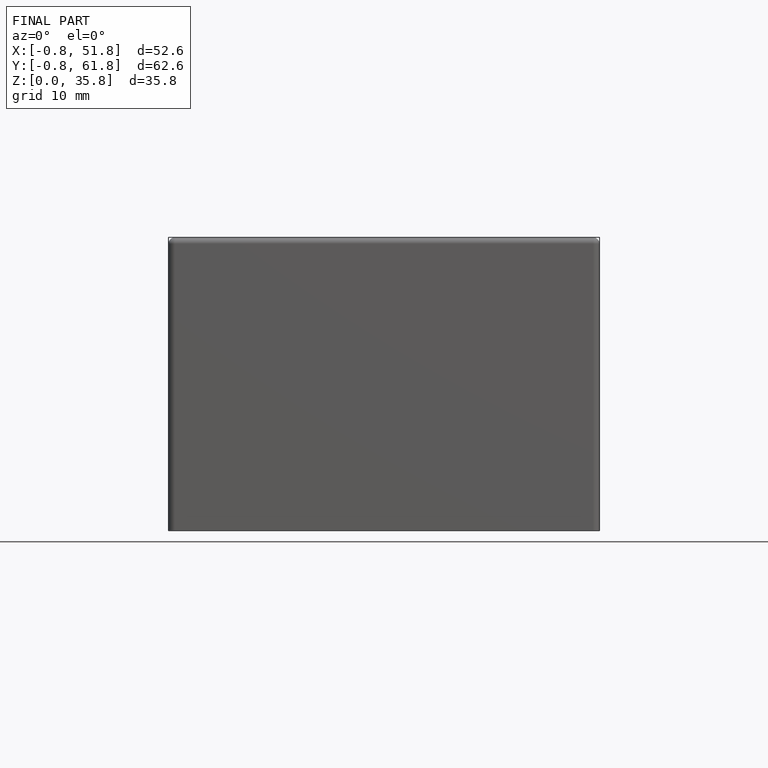
[diagram: finished part — front view with bounding-box wireframe]
